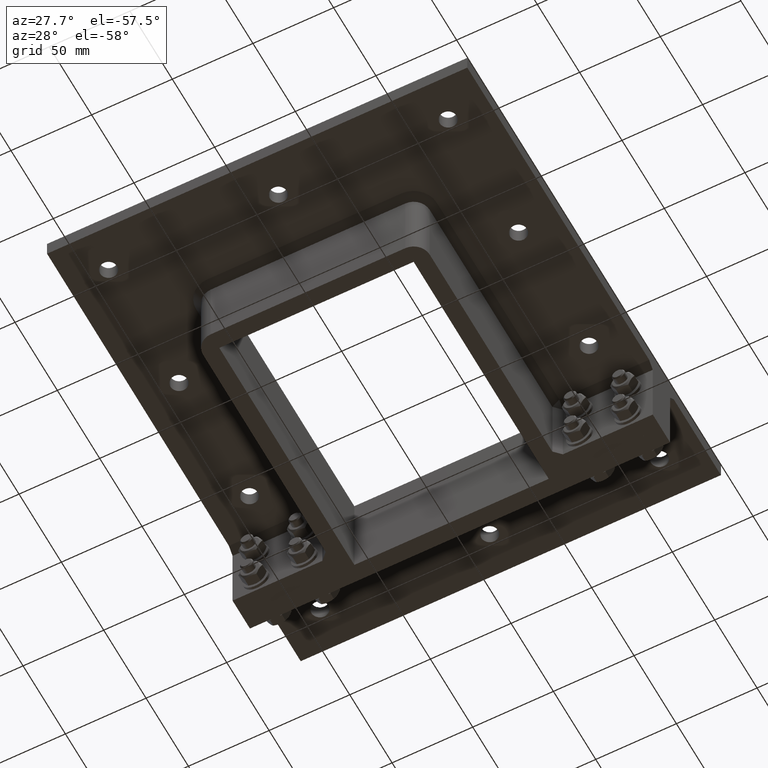
[diagram: clean part render]
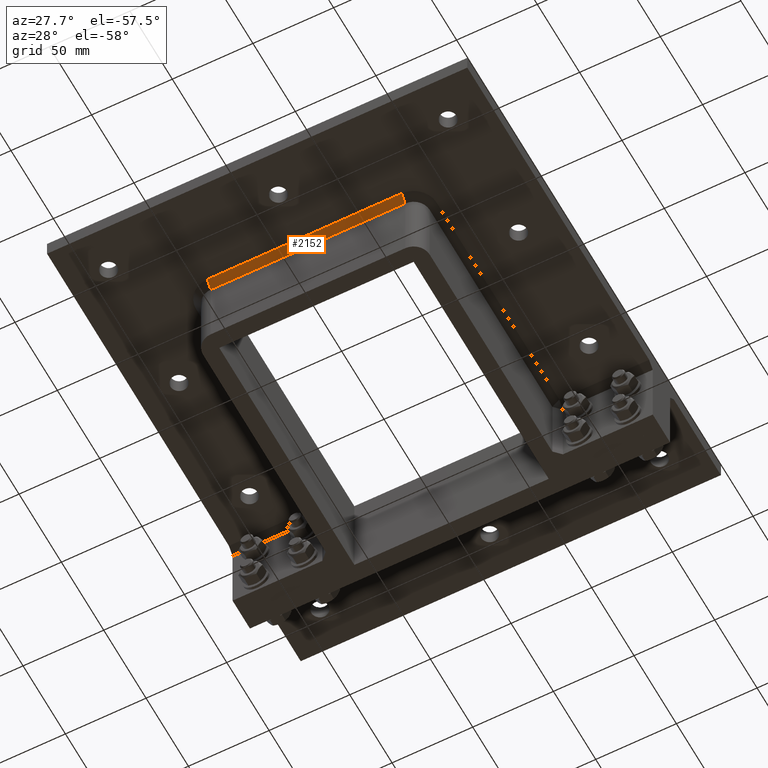
[diagram: same view with one face highlighted and labeled with its STEP entity id]
A machine part, auxiliary view. The second image highlights one B-rep face of the part: STEP entity #2152.
In plain terms, the highlighted planar face has unit normal (0, -0.7071, -0.7071).
Its self-contained STEP definition (entity closure, byte-faithful):
#360=FACE_OUTER_BOUND('',#480,.T.);
#480=EDGE_LOOP('',(#1516,#1517,#1518,#1519));
#683=LINE('',#3370,#855);
#684=LINE('',#3376,#856);
#685=LINE('',#3377,#857);
#686=LINE('',#3378,#858);
#855=VECTOR('',#2708,10.);
#856=VECTOR('',#2715,10.);
#857=VECTOR('',#2716,10.);
#858=VECTOR('',#2717,10.);
#1024=VERTEX_POINT('',#3368);
#1025=VERTEX_POINT('',#3369);
#1026=VERTEX_POINT('',#3374);
#1027=VERTEX_POINT('',#3375);
#1216=EDGE_CURVE('',#1024,#1025,#683,.T.);
#1219=EDGE_CURVE('',#1026,#1027,#684,.T.);
#1220=EDGE_CURVE('',#1027,#1025,#685,.T.);
#1221=EDGE_CURVE('',#1024,#1026,#686,.T.);
#1516=ORIENTED_EDGE('',*,*,#1219,.T.);
#1517=ORIENTED_EDGE('',*,*,#1220,.T.);
#1518=ORIENTED_EDGE('',*,*,#1216,.F.);
#1519=ORIENTED_EDGE('',*,*,#1221,.T.);
#2085=PLANE('',#2445);
#2152=ADVANCED_FACE('',(#360),#2085,.T.);
#2445=AXIS2_PLACEMENT_3D('',#3373,#2713,#2714);
#2708=DIRECTION('',(0.,0.707106781186547,-0.707106781186548));
#2713=DIRECTION('center_axis',(0.,-0.707106781186548,-0.707106781186547));
#2714=DIRECTION('ref_axis',(-1.,0.,0.));
#2715=DIRECTION('',(0.,0.707106781186547,-0.707106781186548));
#2716=DIRECTION('',(1.,0.,0.));
#2717=DIRECTION('',(-1.,0.,0.));
#3368=CARTESIAN_POINT('',(60.25,-94.05,-10.));
#3369=CARTESIAN_POINT('',(60.25,-89.75,-14.3));
#3370=CARTESIAN_POINT('',(60.25,-94.05,-10.));
#3373=CARTESIAN_POINT('Origin',(30.125,-91.9,-12.15));
#3374=CARTESIAN_POINT('',(-60.25,-94.05,-10.));
#3375=CARTESIAN_POINT('',(-60.25,-89.75,-14.3));
#3376=CARTESIAN_POINT('',(-60.25,-94.05,-10.));
#3377=CARTESIAN_POINT('',(30.125,-89.75,-14.3));
#3378=CARTESIAN_POINT('',(30.125,-94.05,-10.));